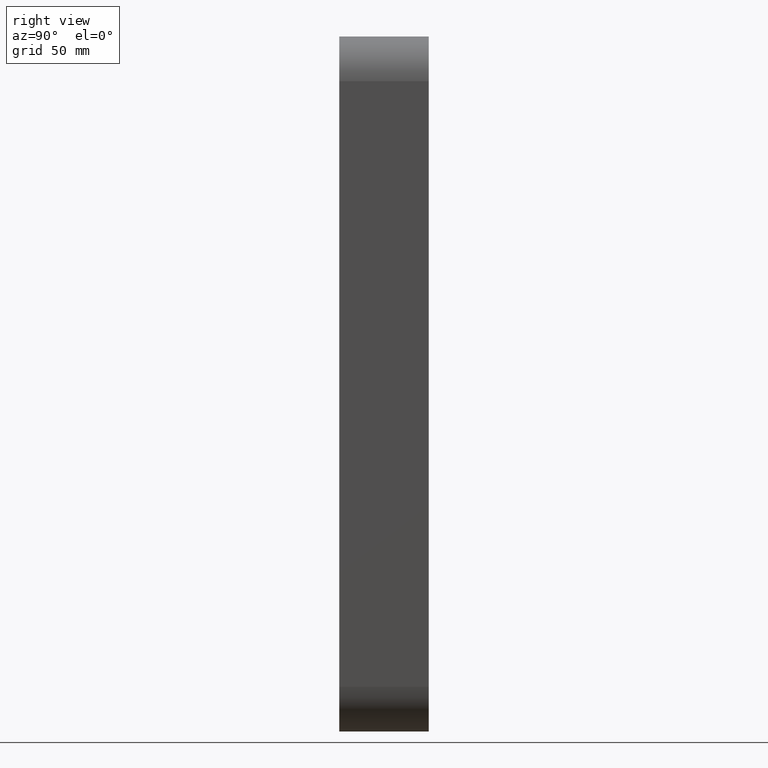
[diagram: clean part render]
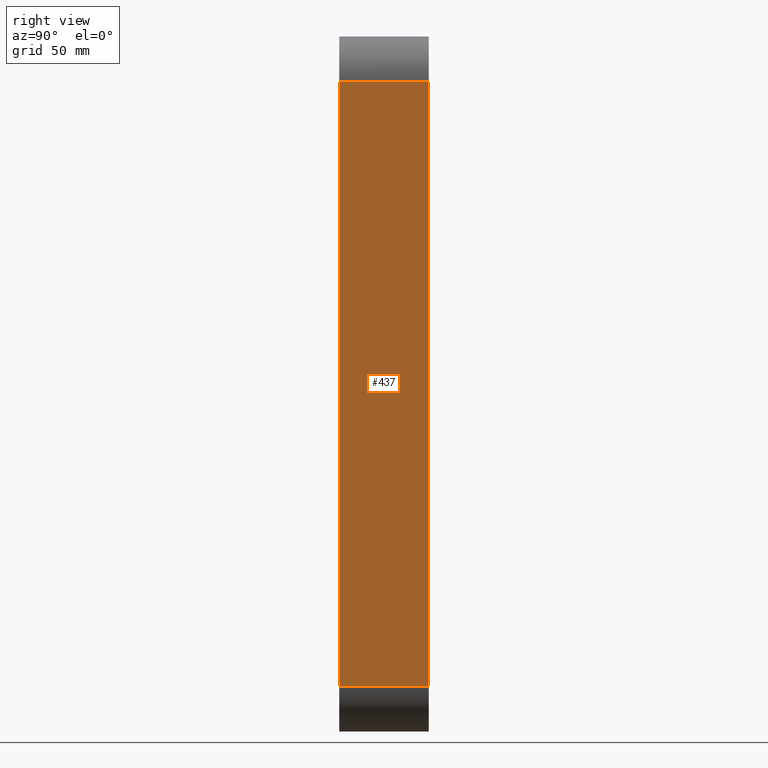
[diagram: same view with one face highlighted and labeled with its STEP entity id]
A machine part, right view. The second image highlights one B-rep face of the part: STEP entity #437.
In plain terms, the highlighted planar face has unit normal (1, 0, 0).
Its self-contained STEP definition (entity closure, byte-faithful):
#248=CARTESIAN_POINT('',(70.25,57.0,-203.00000000000006));
#249=VERTEX_POINT('',#248);
#257=CARTESIAN_POINT('',(70.25,-3.0,-203.00000000000006));
#258=VERTEX_POINT('',#257);
#259=CARTESIAN_POINT('',(70.25,57.0,-203.00000000000006));
#260=DIRECTION('',(0.0,-1.0,0.0));
#261=VECTOR('',#260,60.0);
#262=LINE('',#259,#261);
#263=EDGE_CURVE('',#249,#258,#262,.T.);
#289=CARTESIAN_POINT('',(70.25,-3.0,202.99999999999997));
#290=VERTEX_POINT('',#289);
#291=CARTESIAN_POINT('',(70.25,-3.0,-203.00000000000003));
#292=DIRECTION('',(0.0,0.0,1.0));
#293=VECTOR('',#292,406.0);
#294=LINE('',#291,#293);
#295=EDGE_CURVE('',#258,#290,#294,.T.);
#414=CARTESIAN_POINT('',(70.25,0.0,232.99999999999997));
#415=DIRECTION('',(1.0,0.0,0.0));
#416=DIRECTION('',(0.0,0.0,-1.0));
#417=AXIS2_PLACEMENT_3D('',#414,#415,#416);
#418=PLANE('',#417);
#419=ORIENTED_EDGE('',*,*,#263,.F.);
#420=CARTESIAN_POINT('',(70.25,57.0,202.99999999999997));
#421=VERTEX_POINT('',#420);
#422=CARTESIAN_POINT('',(70.25,57.0,202.99999999999997));
#423=DIRECTION('',(0.0,0.0,-1.0));
#424=VECTOR('',#423,406.0);
#425=LINE('',#422,#424);
#426=EDGE_CURVE('',#421,#249,#425,.T.);
#427=ORIENTED_EDGE('',*,*,#426,.F.);
#428=CARTESIAN_POINT('',(70.25,-3.0,202.99999999999997));
#429=DIRECTION('',(0.0,1.0,0.0));
#430=VECTOR('',#429,60.0);
#431=LINE('',#428,#430);
#432=EDGE_CURVE('',#290,#421,#431,.T.);
#433=ORIENTED_EDGE('',*,*,#432,.F.);
#434=ORIENTED_EDGE('',*,*,#295,.F.);
#435=EDGE_LOOP('',(#419,#427,#433,#434));
#436=FACE_OUTER_BOUND('',#435,.T.);
#437=ADVANCED_FACE('',(#436),#418,.T.);